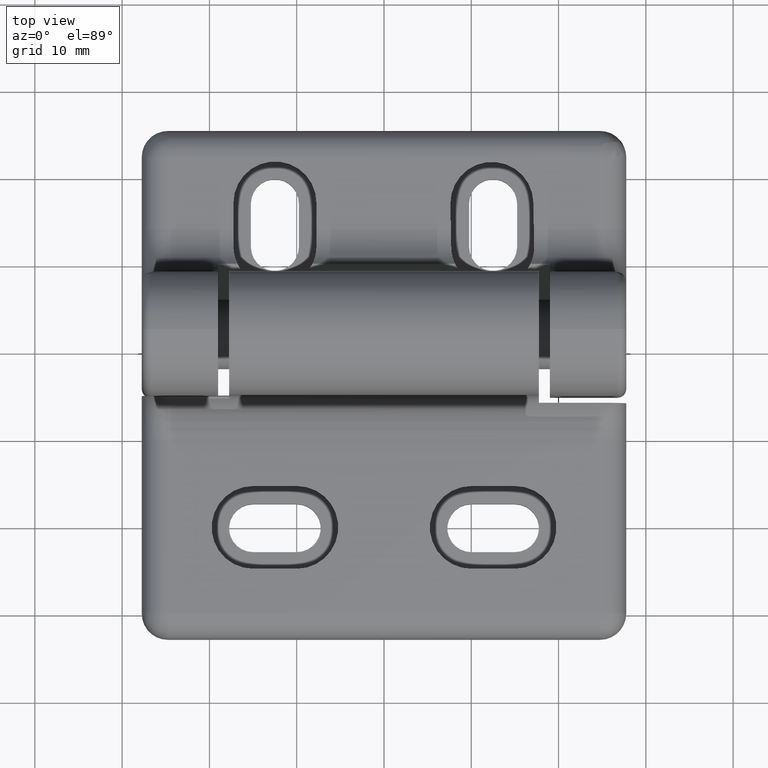
[diagram: clean part render]
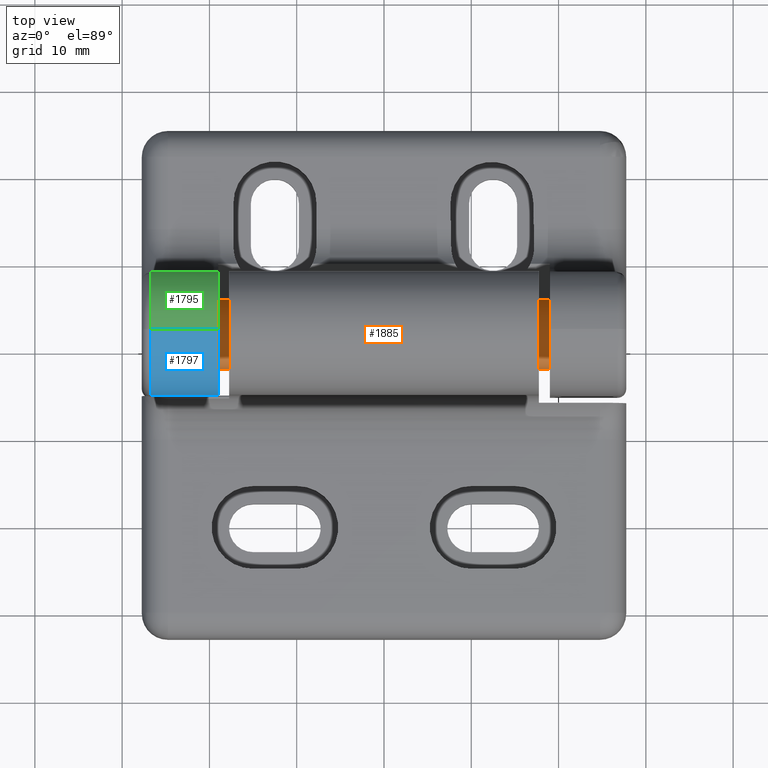
[diagram: same view with three faces highlighted in distinct colors, each labeled with its STEP entity id]
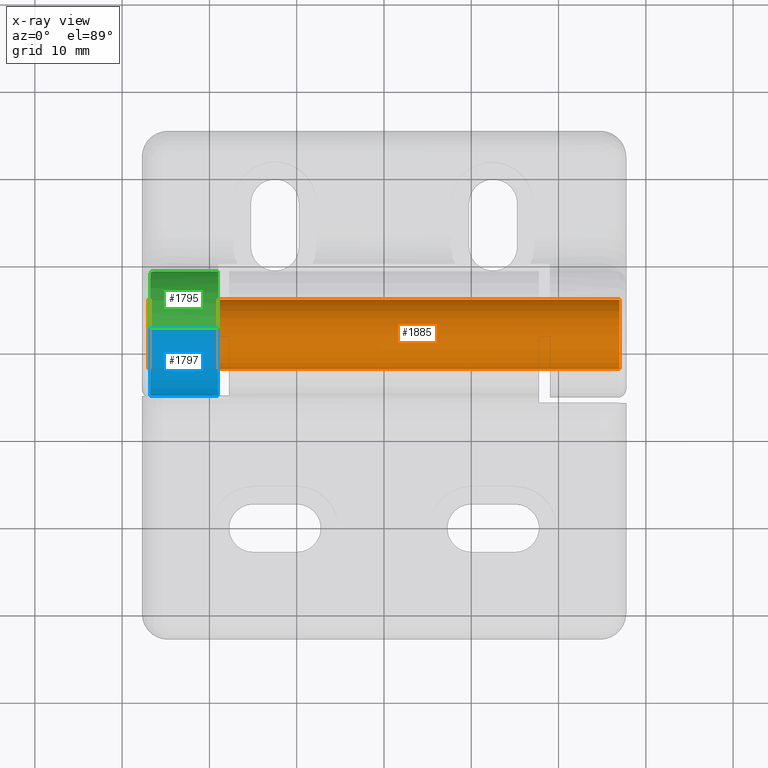
[diagram: x-ray of the same camera — body ghosted, the three highlighted faces saturated]
A machine part, top view with three faces highlighted in distinct colors.
The next image is the same camera in x-ray (body ghosted, the three faces saturated) — at least one of them is partly hidden behind the body in this view.
Their STEP definitions:

[orange] entity #1885 — the highlighted cylindrical surface (bore or boss wall) has radius 4 mm, axis along (1, 0, 0).
#132=FACE_BOUND('',#363,.T.);
#236=FACE_OUTER_BOUND('',#362,.T.);
#362=EDGE_LOOP('',(#1721,#1722));
#363=EDGE_LOOP('',(#1723,#1724));
#754=CIRCLE('',#2098,4.);
#755=CIRCLE('',#2099,4.);
#756=CIRCLE('',#2100,4.);
#757=CIRCLE('',#2101,4.);
#926=VERTEX_POINT('',#3437);
#927=VERTEX_POINT('',#3438);
#928=VERTEX_POINT('',#3441);
#929=VERTEX_POINT('',#3442);
#1193=EDGE_CURVE('',#926,#927,#754,.T.);
#1194=EDGE_CURVE('',#927,#926,#755,.T.);
#1195=EDGE_CURVE('',#928,#929,#756,.T.);
#1196=EDGE_CURVE('',#929,#928,#757,.T.);
#1721=ORIENTED_EDGE('',*,*,#1193,.T.);
#1722=ORIENTED_EDGE('',*,*,#1194,.T.);
#1723=ORIENTED_EDGE('',*,*,#1195,.F.);
#1724=ORIENTED_EDGE('',*,*,#1196,.F.);
#1781=CYLINDRICAL_SURFACE('',#2097,4.);
#1885=ADVANCED_FACE('',(#236,#132),#1781,.T.);
#2097=AXIS2_PLACEMENT_3D('',#3436,#2653,#2654);
#2098=AXIS2_PLACEMENT_3D('',#3439,#2655,#2656);
#2099=AXIS2_PLACEMENT_3D('',#3440,#2657,#2658);
#2100=AXIS2_PLACEMENT_3D('',#3443,#2659,#2660);
#2101=AXIS2_PLACEMENT_3D('',#3444,#2661,#2662);
#2653=DIRECTION('center_axis',(0.,0.,1.));
#2654=DIRECTION('ref_axis',(1.,0.,0.));
#2655=DIRECTION('center_axis',(0.,0.,1.));
#2656=DIRECTION('ref_axis',(1.,0.,0.));
#2657=DIRECTION('center_axis',(0.,0.,1.));
#2658=DIRECTION('ref_axis',(1.,0.,0.));
#2659=DIRECTION('center_axis',(0.,0.,1.));
#2660=DIRECTION('ref_axis',(1.,0.,0.));
#2661=DIRECTION('center_axis',(0.,0.,1.));
#2662=DIRECTION('ref_axis',(1.,0.,0.));
#3436=CARTESIAN_POINT('Origin',(0.,0.,0.));
#3437=CARTESIAN_POINT('',(4.,0.,0.5));
#3438=CARTESIAN_POINT('',(-4.,0.,0.5));
#3439=CARTESIAN_POINT('Origin',(0.,0.,0.5));
#3440=CARTESIAN_POINT('Origin',(0.,0.,0.5));
#3441=CARTESIAN_POINT('',(-4.,0.,54.5));
#3442=CARTESIAN_POINT('',(4.,0.,54.5));
#3443=CARTESIAN_POINT('Origin',(0.,0.,54.5));
#3444=CARTESIAN_POINT('Origin',(0.,0.,54.5));

[blue] entity #1797 — the highlighted cylindrical surface (partial cylindrical patch) has radius 7.5 mm, axis along (-1, 0, 0).
#148=FACE_OUTER_BOUND('',#257,.T.);
#257=EDGE_LOOP('',(#1271,#1272,#1273,#1274));
#390=LINE('',#2844,#535);
#392=LINE('',#2856,#537);
#535=VECTOR('',#2211,7.74999999999999);
#537=VECTOR('',#2225,7.75);
#683=CIRCLE('',#1940,7.5);
#684=CIRCLE('',#1941,7.5);
#805=VERTEX_POINT('',#2835);
#807=VERTEX_POINT('',#2842);
#810=VERTEX_POINT('',#2852);
#811=VERTEX_POINT('',#2854);
#989=EDGE_CURVE('',#805,#807,#390,.T.);
#993=EDGE_CURVE('',#810,#805,#683,.T.);
#994=EDGE_CURVE('',#807,#811,#684,.T.);
#995=EDGE_CURVE('',#810,#811,#392,.T.);
#1271=ORIENTED_EDGE('',*,*,#993,.T.);
#1272=ORIENTED_EDGE('',*,*,#989,.T.);
#1273=ORIENTED_EDGE('',*,*,#994,.T.);
#1274=ORIENTED_EDGE('',*,*,#995,.F.);
#1752=CYLINDRICAL_SURFACE('',#1939,7.5);
#1797=ADVANCED_FACE('',(#148),#1752,.T.);
#1939=AXIS2_PLACEMENT_3D('',#2851,#2219,#2220);
#1940=AXIS2_PLACEMENT_3D('',#2853,#2221,#2222);
#1941=AXIS2_PLACEMENT_3D('',#2855,#2223,#2224);
#2211=DIRECTION('',(-1.,0.,0.));
#2219=DIRECTION('center_axis',(-1.,0.,0.));
#2220=DIRECTION('ref_axis',(0.,0.707106781186548,-0.707106781186547));
#2221=DIRECTION('center_axis',(-1.,0.,0.));
#2222=DIRECTION('ref_axis',(0.,0.,1.));
#2223=DIRECTION('center_axis',(1.,0.,0.));
#2224=DIRECTION('ref_axis',(0.,0.,-1.));
#2225=DIRECTION('',(-1.,0.,0.));
#2835=CARTESIAN_POINT('',(-9.,22.4677756572818,23.4977729309299));
#2842=CARTESIAN_POINT('',(-16.75,22.4677756573273,23.4977729309173));
#2844=CARTESIAN_POINT('',(-9.,22.4677756572818,23.4977729309299));
#2851=CARTESIAN_POINT('Origin',(-8.99999999000001,22.4677756572818,15.9977729309299));
#2852=CARTESIAN_POINT('',(-9.,14.9677756572819,15.9977729309299));
#2853=CARTESIAN_POINT('Origin',(-9.,22.4677756572818,15.9977729309299));
#2854=CARTESIAN_POINT('',(-16.75,14.9677756572818,15.9977729309299));
#2855=CARTESIAN_POINT('Origin',(-16.75,22.4677756572818,15.9977729309299));
#2856=CARTESIAN_POINT('',(-9.,14.9677756572818,15.9977729309299));

[green] entity #1795 — the highlighted cylindrical surface (partial cylindrical patch) has radius 7.1 mm, axis along (-1, 0, 0).
#101=B_SPLINE_CURVE_WITH_KNOTS('',3,(#2838,#2839,#2840,#2841),
 .UNSPECIFIED.,.F.,.F.,(4,4),(3.469447E-018,0.001931711352954),
 .UNSPECIFIED.);
#146=FACE_OUTER_BOUND('',#255,.T.);
#255=EDGE_LOOP('',(#1262,#1263,#1264,#1265,#1266));
#384=LINE('',#2805,#529);
#390=LINE('',#2844,#535);
#529=VECTOR('',#2181,7.42160681050206);
#535=VECTOR('',#2211,7.74999999999999);
#679=CIRCLE('',#1934,7.1);
#680=CIRCLE('',#1935,7.1);
#796=VERTEX_POINT('',#2795);
#797=VERTEX_POINT('',#2797);
#805=VERTEX_POINT('',#2835);
#806=VERTEX_POINT('',#2837);
#807=VERTEX_POINT('',#2842);
#973=EDGE_CURVE('',#796,#797,#384,.T.);
#986=EDGE_CURVE('',#796,#805,#679,.T.);
#987=EDGE_CURVE('',#797,#806,#101,.T.);
#988=EDGE_CURVE('',#806,#807,#680,.T.);
#989=EDGE_CURVE('',#805,#807,#390,.T.);
#1262=ORIENTED_EDGE('',*,*,#986,.F.);
#1263=ORIENTED_EDGE('',*,*,#973,.T.);
#1264=ORIENTED_EDGE('',*,*,#987,.T.);
#1265=ORIENTED_EDGE('',*,*,#988,.T.);
#1266=ORIENTED_EDGE('',*,*,#989,.F.);
#1750=CYLINDRICAL_SURFACE('',#1933,7.1);
#1795=ADVANCED_FACE('',(#146),#1750,.T.);
#1933=AXIS2_PLACEMENT_3D('',#2834,#2205,#2206);
#1934=AXIS2_PLACEMENT_3D('',#2836,#2207,#2208);
#1935=AXIS2_PLACEMENT_3D('',#2843,#2209,#2210);
#2181=DIRECTION('',(-1.,0.,0.));
#2205=DIRECTION('center_axis',(-1.,0.,0.));
#2206=DIRECTION('ref_axis',(0.,0.,1.));
#2207=DIRECTION('center_axis',(1.,0.,0.));
#2208=DIRECTION('ref_axis',(0.,1.,0.));
#2209=DIRECTION('center_axis',(1.,0.,0.));
#2210=DIRECTION('ref_axis',(0.,0.,-1.));
#2211=DIRECTION('',(-1.,0.,0.));
#2795=CARTESIAN_POINT('',(-9.,29.1677756572819,16.409049491551));
#2797=CARTESIAN_POINT('',(-16.4216068105021,29.1677756572819,16.409049491551));
#2805=CARTESIAN_POINT('',(-9.,29.1677756572819,16.409049491551));
#2834=CARTESIAN_POINT('Origin',(-8.99999999000001,22.0677756572819,16.409049491551));
#2835=CARTESIAN_POINT('',(-9.,22.4677756572818,23.4977729309299));
#2836=CARTESIAN_POINT('Origin',(-9.,22.0677756572819,16.409049491551));
#2837=CARTESIAN_POINT('',(-16.75,28.9125878640267,18.2954603307895));
#2838=CARTESIAN_POINT('Ctrl Pts',(-16.4216068105021,29.1677756572819,16.409049491551));
#2839=CARTESIAN_POINT('Ctrl Pts',(-16.5970119611283,29.1677756572819,17.0378809045361));
#2840=CARTESIAN_POINT('Ctrl Pts',(-16.7500000000001,29.0877760683052,17.6597926733628));
#2841=CARTESIAN_POINT('Ctrl Pts',(-16.75,28.9125878640267,18.2954603307895));
#2842=CARTESIAN_POINT('',(-16.75,22.4677756573273,23.4977729309173));
#2843=CARTESIAN_POINT('Origin',(-16.75,22.0677756572819,16.409049491551));
#2844=CARTESIAN_POINT('',(-9.,22.4677756572818,23.4977729309299));